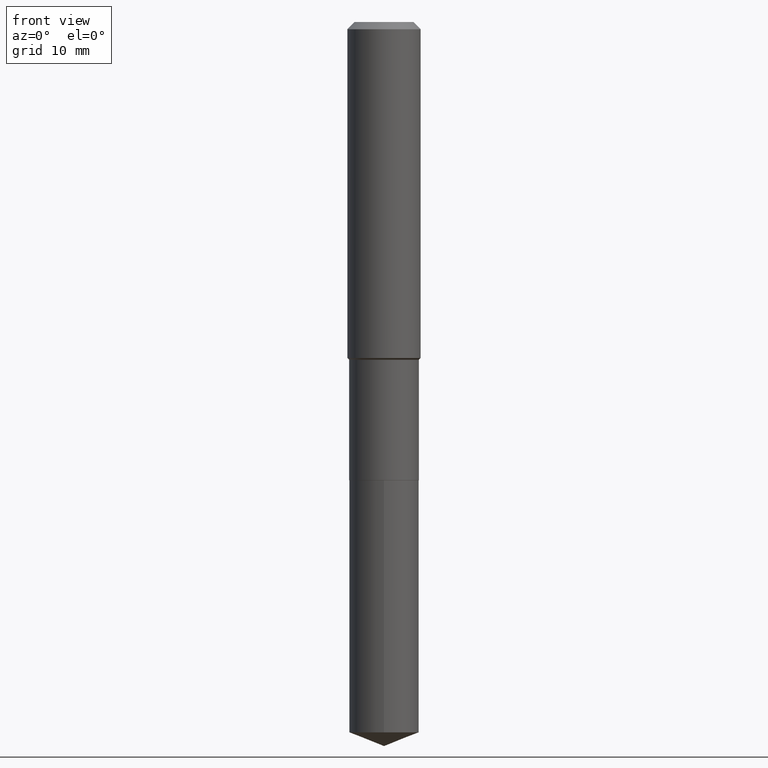
[diagram: clean part render]
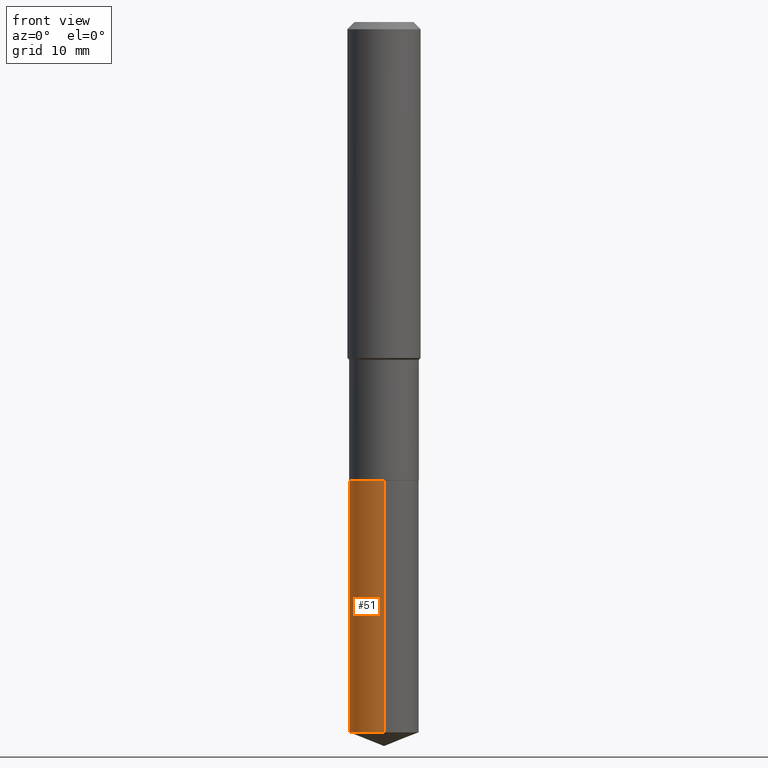
[diagram: same view with one face highlighted and labeled with its STEP entity id]
A machine part, front view. The second image highlights one B-rep face of the part: STEP entity #51.
In plain terms, the highlighted cylindrical surface (edge-blend (fillet) strip) has radius 3.7998 mm, axis along (-0, 0, 1).
Its self-contained STEP definition (entity closure, byte-faithful):
#2 = EDGE_CURVE ( 'NONE', #96, #421, #189, .T. ) ;
#8 = CARTESIAN_POINT ( 'NONE',  ( 1.062971932697184699E-15, 0.1495999999999931551, -1.968500000000000583 ) ) ;
#16 = VECTOR ( 'NONE', #362, 39.37007874015748143 ) ;
#42 = CARTESIAN_POINT ( 'NONE',  ( 4.813905344975441835E-29, -6.872981015512731707E-15, -1.968500000000000139 ) ) ;
#51 = ADVANCED_FACE ( 'NONE', ( #446 ), #266, .T. ) ;
#69 = CARTESIAN_POINT ( 'NONE',  ( 1.062971932697157878E-15, 0.1495999999999931274, -1.968500000000000583 ) ) ;
#70 = VECTOR ( 'NONE', #337, 39.37007874015748143 ) ;
#79 = CIRCLE ( 'NONE', #99, 0.1496000000000000107 ) ;
#86 = CARTESIAN_POINT ( 'NONE',  ( -1.044651216581817283E-15, -0.1496000000000068941, -1.968499999999999472 ) ) ;
#91 = ORIENTED_EDGE ( 'NONE', *, *, #2, .F. ) ;
#96 = VERTEX_POINT ( 'NONE', #225 ) ;
#99 = AXIS2_PLACEMENT_3D ( 'NONE', #42, #355, #469 ) ;
#109 = DIRECTION ( 'NONE',  ( -6.982962677686265922E-15, -1.000000000000000000, 3.652203200085913145E-15 ) ) ;
#125 = DIRECTION ( 'NONE',  ( -2.445346808802135557E-29, 3.491656046039262657E-15, 1.000000000000000000 ) ) ;
#128 = EDGE_CURVE ( 'NONE', #421, #391, #79, .T. ) ;
#137 = AXIS2_PLACEMENT_3D ( 'NONE', #340, #149, #109 ) ;
#149 = DIRECTION ( 'NONE',  ( -2.445346808802135557E-29, 3.491656046039262657E-15, 1.000000000000000000 ) ) ;
#189 = LINE ( 'NONE', #69, #70 ) ;
#225 = CARTESIAN_POINT ( 'NONE',  ( 1.062971932697184502E-15, 0.1495999999999893804, -3.051270992848006181 ) ) ;
#254 = ORIENTED_EDGE ( 'NONE', *, *, #463, .T. ) ;
#266 = CYLINDRICAL_SURFACE ( 'NONE', #137, 0.1496000000000000107 ) ;
#274 = EDGE_LOOP ( 'NONE', ( #91, #465, #254, #467 ) ) ;
#304 = EDGE_CURVE ( 'NONE', #96, #487, #460, .T. ) ;
#311 = CARTESIAN_POINT ( 'NONE',  ( 7.461655936999831044E-29, -1.065364489916640516E-14, -3.051270992848005736 ) ) ;
#328 = LINE ( 'NONE', #434, #16 ) ;
#337 = DIRECTION ( 'NONE',  ( -2.445346808802135557E-29, 3.491656046039262657E-15, 1.000000000000000000 ) ) ;
#340 = CARTESIAN_POINT ( 'NONE',  ( 4.813905344975441835E-29, -6.872981015512731707E-15, -1.968500000000000139 ) ) ;
#343 = AXIS2_PLACEMENT_3D ( 'NONE', #311, #125, #423 ) ;
#355 = DIRECTION ( 'NONE',  ( -2.445346808802135557E-29, 3.491656046039262657E-15, 1.000000000000000000 ) ) ;
#362 = DIRECTION ( 'NONE',  ( -2.445346808802135557E-29, 3.491656046039262657E-15, 1.000000000000000000 ) ) ;
#391 = VERTEX_POINT ( 'NONE', #86 ) ;
#396 = CARTESIAN_POINT ( 'NONE',  ( -1.044651216581790856E-15, -0.1496000000000106689, -3.051270992848004848 ) ) ;
#421 = VERTEX_POINT ( 'NONE', #8 ) ;
#423 = DIRECTION ( 'NONE',  ( -6.982962677686265922E-15, -1.000000000000000000, 3.652203200085913145E-15 ) ) ;
#434 = CARTESIAN_POINT ( 'NONE',  ( -1.044651216581817283E-15, -0.1496000000000068941, -1.968499999999999472 ) ) ;
#446 = FACE_OUTER_BOUND ( 'NONE', #274, .T. ) ;
#460 = CIRCLE ( 'NONE', #343, 0.1496000000000000107 ) ;
#463 = EDGE_CURVE ( 'NONE', #487, #391, #328, .T. ) ;
#465 = ORIENTED_EDGE ( 'NONE', *, *, #304, .T. ) ;
#467 = ORIENTED_EDGE ( 'NONE', *, *, #128, .F. ) ;
#469 = DIRECTION ( 'NONE',  ( -6.982962677686265922E-15, -1.000000000000000000, 3.652203200085913145E-15 ) ) ;
#487 = VERTEX_POINT ( 'NONE', #396 ) ;